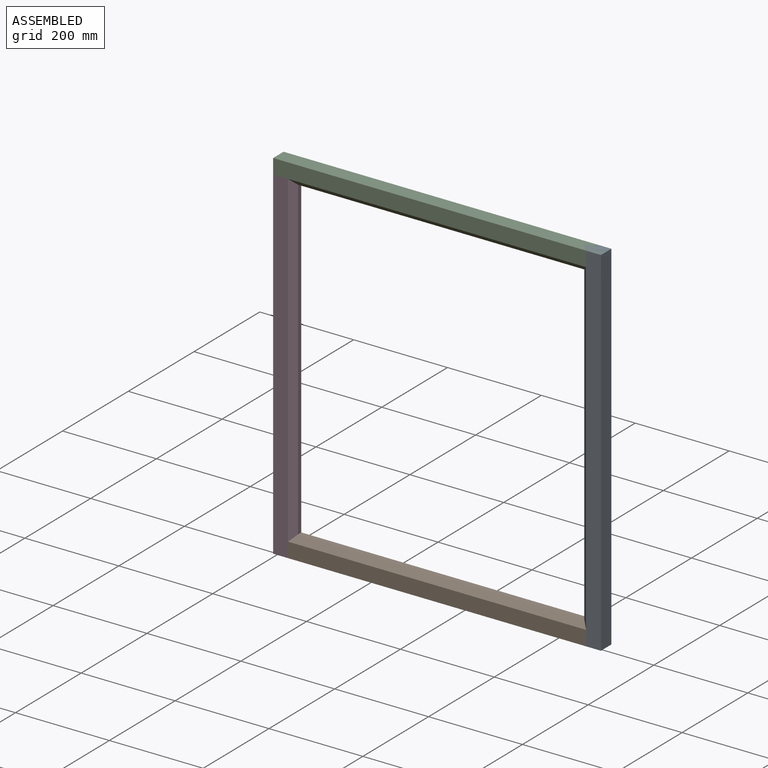
[diagram: assembled view]
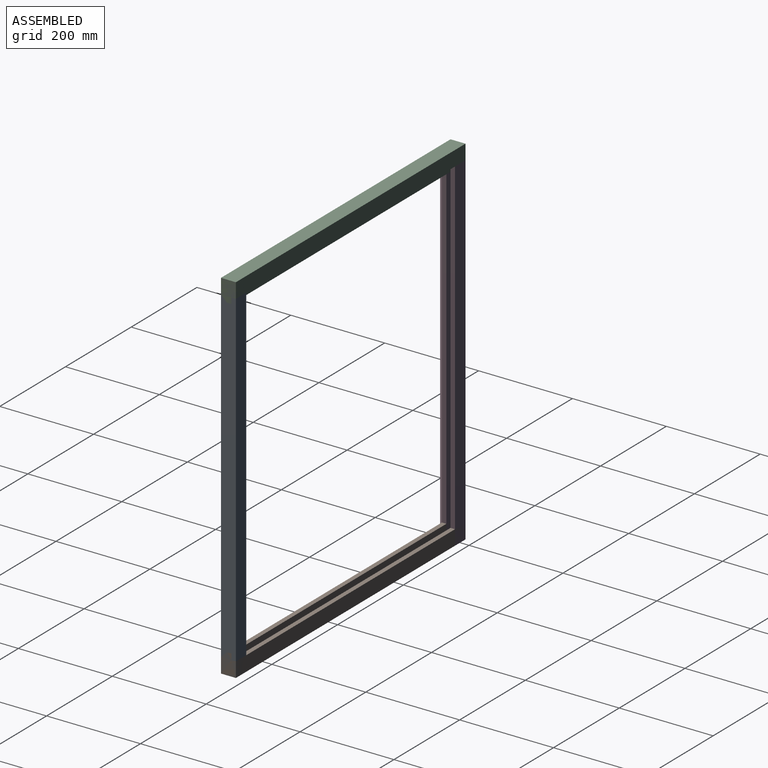
[diagram: assembled view, second angle]
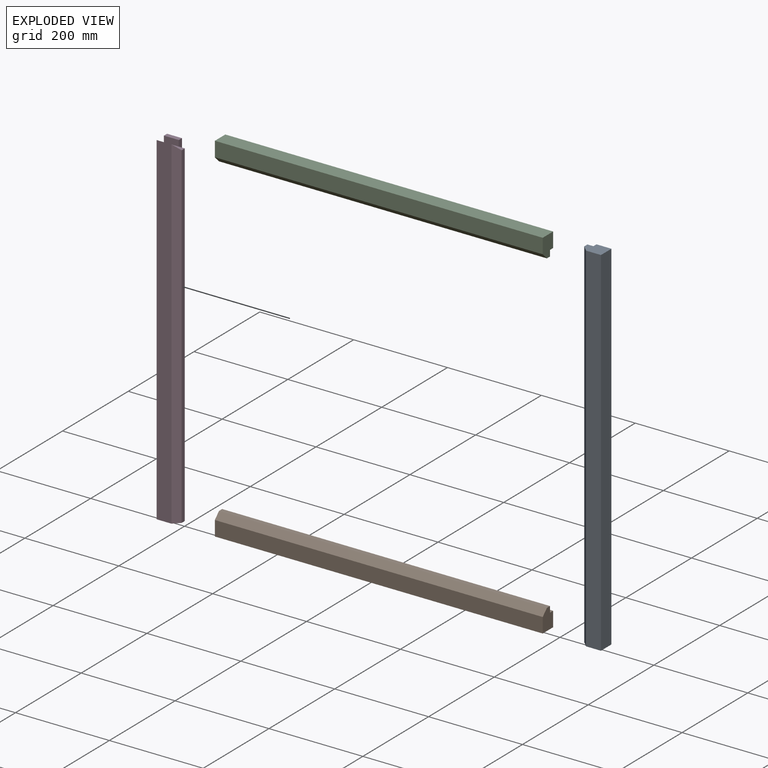
[diagram: exploded view]
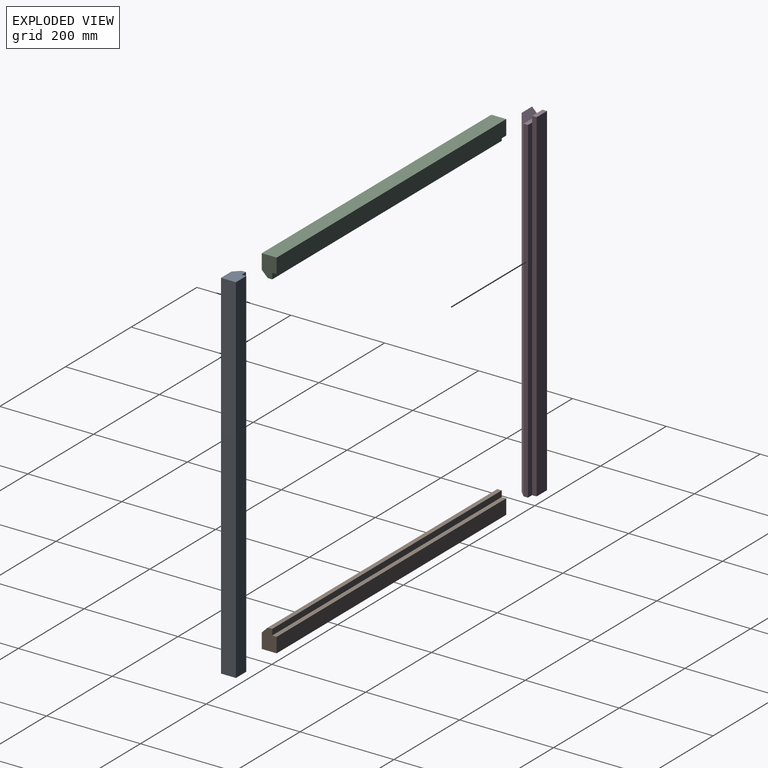
[diagram: exploded view, second angle]
ASSEMBLY  parts=4 mates=2
PART A: 9 faces, bbox 44.5x31.8x762 mm
  f0: plane 762x9.53mm, normal (-1,0,0), area 7258.1mm2, adj f1,f2,f6,f7
  f1: plane 44.45x31.75mm, normal (0,0,-1), area 1209.7mm2, adj f0,f3,f4,f5,f6,f7,f8
  f2: plane 44.45x31.75mm, normal (0,0,1), area 1209.7mm2, adj f0,f3,f4,f5,f6,f7,f8
  f3: plane 762x31.75mm, normal (1,0,0), area 24193.5mm2, adj f1,f2,f4,f5
  f4: plane 762x31.75mm, normal (0,-1,0), area 24193.5mm2, adj f1,f2,f3,f6
  f5: plane 762x31.75mm, normal (0,1,0), area 24193.5mm2, adj f1,f2,f3,f8
  f6: plane 762x12.7mm, normal (-0.71,-0.71,0), area 13685.9mm2, adj f0,f1,f2,f4
  f7: plane 762x12.7mm, normal (0,1,0), area 9677.4mm2, adj f0,f1,f2,f8
  f8: plane 762x9.53mm, normal (-1,0,0), area 7258.1mm2, adj f1,f2,f5,f7
PART B: 9 faces, bbox 698.5x31.8x44.5 mm
  f0: plane 44.45x31.75mm, normal (-1,0,0), area 1209.7mm2, adj f2,f3,f4,f5,f6,f7,f8
  f1: plane 44.45x31.75mm, normal (1,0,0), area 1209.7mm2, adj f2,f3,f4,f5,f6,f7,f8
  f2: plane 698.5x9.53mm, normal (0,0,1), area 6653.2mm2, adj f0,f1,f6,f8
  f3: plane 698.5x31.75mm, normal (0,0,-1), area 22177.4mm2, adj f0,f1,f4,f5
  f4: plane 698.5x31.75mm, normal (0,-1,0), area 22177.4mm2, adj f0,f1,f3,f6
  f5: plane 698.5x31.75mm, normal (0,1,0), area 22177.4mm2, adj f0,f1,f3,f7
  f6: plane 698.5x12.7mm, normal (0,-0.71,0.71), area 12545.4mm2, adj f0,f1,f2,f4
  f7: plane 698.5x9.53mm, normal (0,0,1), area 6653.2mm2, adj f0,f1,f5,f8
  f8: plane 698.5x12.7mm, normal (0,1,0), area 8870.9mm2, adj f0,f1,f2,f7
PART C: 9 faces, bbox 698.5x31.8x44.5 mm
  f0: plane 44.45x31.75mm, normal (-1,0,0), area 1209.7mm2, adj f1,f2,f3,f5,f6,f7,f8
  f1: plane 698.5x31.75mm, normal (0,1,0), area 22177.4mm2, adj f0,f2,f4,f7
  f2: plane 698.5x31.75mm, normal (0,0,1), area 22177.4mm2, adj f0,f1,f4,f5
  f3: plane 698.5x9.53mm, normal (0,0,-1), area 6653.2mm2, adj f0,f4,f6,f8
  f4: plane 44.45x31.75mm, normal (1,0,0), area 1209.7mm2, adj f1,f2,f3,f5,f6,f7,f8
  f5: plane 698.5x31.75mm, normal (0,-1,0), area 22177.4mm2, adj f0,f2,f4,f6
  f6: plane 698.5x12.7mm, normal (0,-0.71,-0.71), area 12545.4mm2, adj f0,f3,f4,f5
  f7: plane 698.5x9.53mm, normal (0,0,-1), area 6653.2mm2, adj f0,f1,f4,f8
  f8: plane 698.5x12.7mm, normal (0,1,0), area 8871mm2, adj f0,f3,f4,f7
PART D: 12 faces, bbox 44.5x31.8x730.3 mm
  f0: plane 730.25x31.75mm, normal (0,1,0), area 23185.4mm2, adj f3,f4,f7,f9
  f1: plane 730.25x31.75mm, normal (0,-1,0), area 23185.4mm2, adj f3,f4,f5,f11
  f2: plane 717.55x9.53mm, normal (1,0,0), area 6834.7mm2, adj f4,f5,f6,f10
  f3: plane 730.25x31.75mm, normal (-1,0,0), area 22983.8mm2, adj f0,f1,f4,f8,f9,f10,f11
  f4: plane 44.45x31.75mm, normal (0,0,-1), area 1209.7mm2, adj f0,f1,f2,f3,f5,f6,f7
  f5: plane 730.25x12.7mm, normal (0.71,-0.71,0), area 13001.6mm2, adj f1,f2,f4,f11
  f6: plane 717.55x12.7mm, normal (0,1,0), area 9112.9mm2, adj f2,f4,f7,f10
  f7: plane 730.25x9.53mm, normal (1,0,0), area 6955.6mm2, adj f0,f4,f6,f8,f9
  f8: plane 31.75x12.7mm, normal (0,-1,0), area 403.2mm2, adj f3,f7,f9,f10
  f9: plane 31.75x9.53mm, normal (0,0,1), area 302.4mm2, adj f0,f3,f7,f8
  f10: plane 44.45x9.53mm, normal (0,0,1), area 423.4mm2, adj f2,f3,f6,f8,f11
  f11: plane 44.45x12.7mm, normal (0,0.71,0.71), area 684.3mm2, adj f1,f3,f5,f10
PLACE A at identity
PLACE B t=(-224.63,0,176.29)mm
PLACE C t=(-218.63,0,-285.82)mm
PLACE D t=(-244.63,0,-63.57)mm
MATE fastened B.f0 <-> D.f3  axis (-1,0,0) through (-389.04,-31.75,-159.95)mm
MATE fastened C.f4 <-> A.f3  axis (1,0,0) through (309.46,-31.75,602.05)mm
